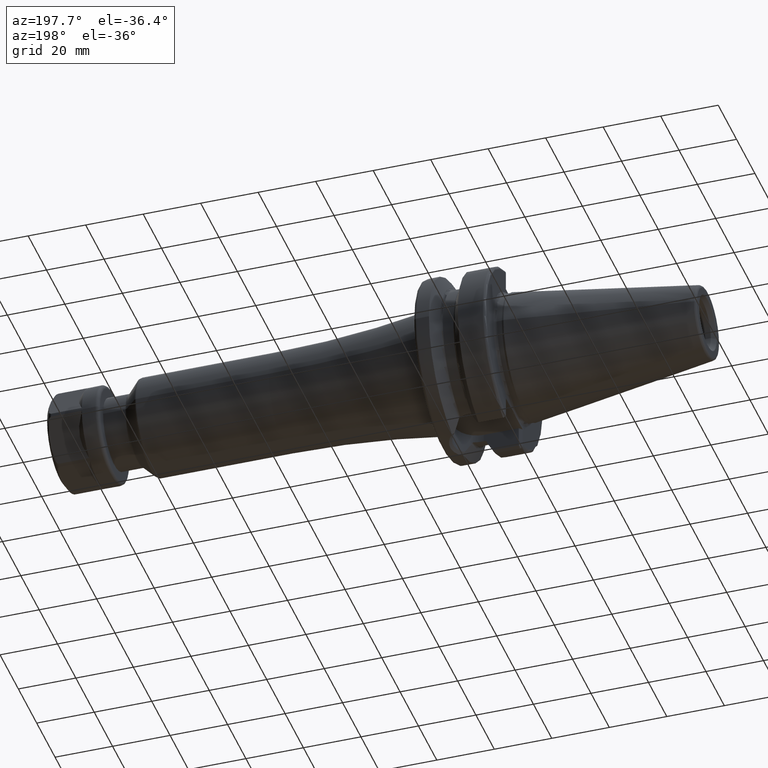
[diagram: clean part render]
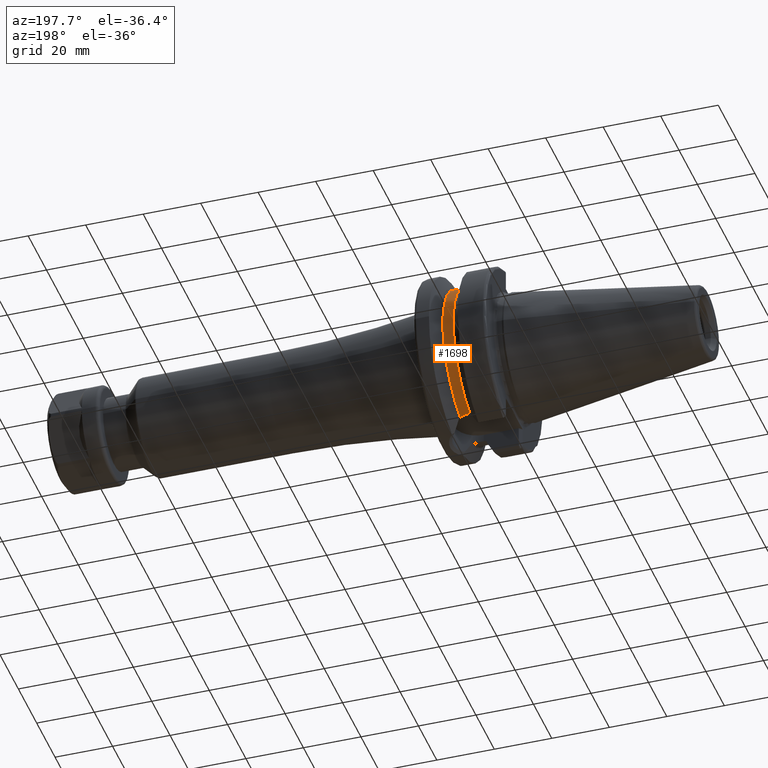
[diagram: same view with one face highlighted and labeled with its STEP entity id]
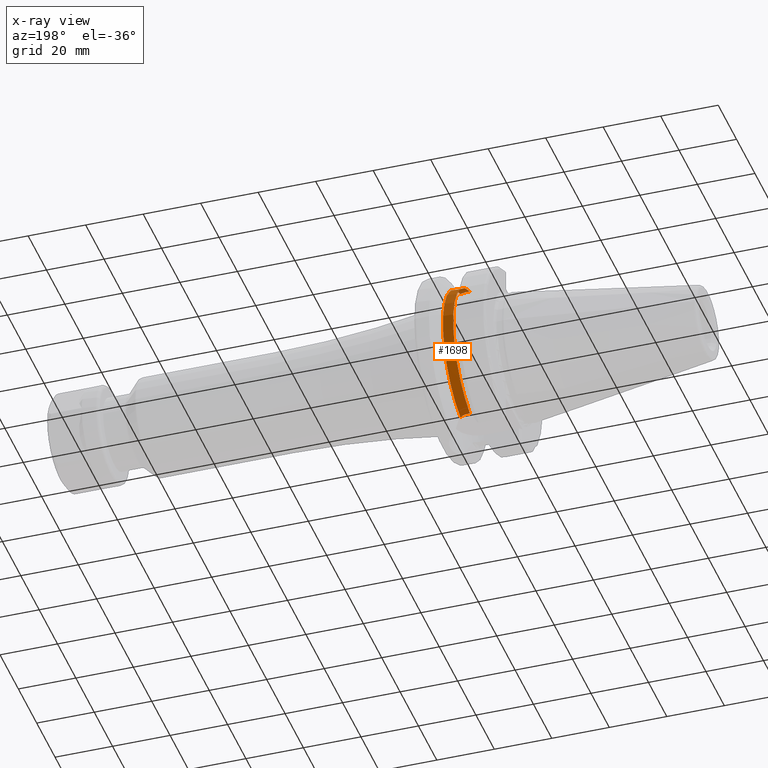
[diagram: x-ray of the same camera — body ghosted, the highlighted face saturated]
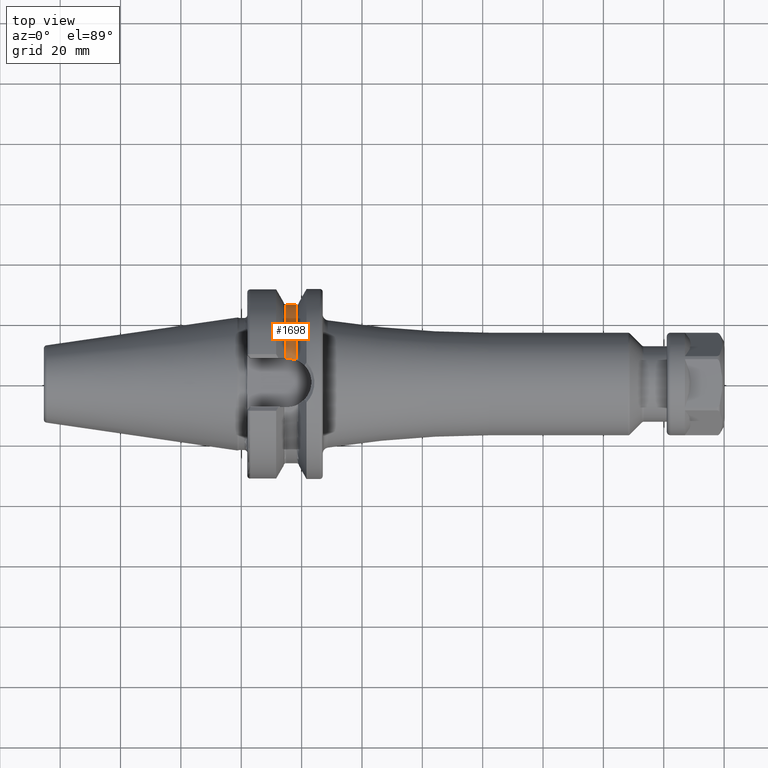
[diagram: same view with one face highlighted and labeled with its STEP entity id]
A machine part, auxiliary view. The second image highlights one B-rep face of the part: STEP entity #1698.
The next image is the same camera in x-ray: the body ghosted, the highlighted face saturated — about 1% of this face is hidden behind the body in this view.
A second angle (top view) of the same face is appended — the face is thin or edge-on in the first view.
In plain terms, the highlighted cylindrical surface (partial cylindrical patch) has radius 26.375 mm, axis along (1, 0, 0).
Its self-contained STEP definition (entity closure, byte-faithful):
#71=CARTESIAN_POINT('',(1.83875E1,0.E0,0.E0));
#72=DIRECTION('',(-1.E0,0.E0,0.E0));
#73=DIRECTION('',(0.E0,2.813872235362E-1,9.595943051262E-1));
#74=AXIS2_PLACEMENT_3D('',#71,#72,#73);
#91=CARTESIAN_POINT('',(1.48125E1,0.E0,0.E0));
#92=DIRECTION('',(-1.E0,0.E0,0.E0));
#93=DIRECTION('',(0.E0,3.069194312796E-1,9.517355003902E-1));
#94=AXIS2_PLACEMENT_3D('',#91,#92,#93);
#96=CARTESIAN_POINT('',(1.5155E1,8.095E0,-2.510202382279E1));
#97=CARTESIAN_POINT('',(1.552274115811E1,8.095E0,-2.510202382279E1));
#98=CARTESIAN_POINT('',(1.625266243215E1,8.045449937199E0,-2.511808739773E1));
#99=CARTESIAN_POINT('',(1.734035783533E1,7.820815510938E0,-2.518941465745E1));
#100=CARTESIAN_POINT('',(1.804170386658E1,7.572200800424E0,-2.526513476705E1));
#101=CARTESIAN_POINT('',(1.83875E1,7.421588020768E0,-2.530929979770E1));
#103=CARTESIAN_POINT('',(1.83875E1,7.421588020768E0,2.530929979770E1));
#104=CARTESIAN_POINT('',(1.804170386658E1,7.572200800424E0,2.526513476705E1));
#105=CARTESIAN_POINT('',(1.734035783533E1,7.820815510938E0,2.518941465745E1));
#106=CARTESIAN_POINT('',(1.625266243215E1,8.045449937199E0,2.511808739773E1));
#107=CARTESIAN_POINT('',(1.552274115811E1,8.095E0,2.510202382279E1));
#108=CARTESIAN_POINT('',(1.5155E1,8.095E0,2.510202382279E1));
#389=DIRECTION('',(1.E0,2.074577330686E-14,0.E0));
#390=VECTOR('',#389,3.425E-1);
#391=CARTESIAN_POINT('',(1.48125E1,8.095E0,-2.510202382279E1));
#392=LINE('',#391,#390);
#485=DIRECTION('',(1.E0,0.E0,0.E0));
#486=VECTOR('',#485,3.425E-1);
#487=CARTESIAN_POINT('',(1.48125E1,8.095E0,2.510202382279E1));
#488=LINE('',#487,#486);
#1266=CARTESIAN_POINT('',(1.48125E1,8.095E0,2.510202382279E1));
#1267=CARTESIAN_POINT('',(1.48125E1,8.095E0,-2.510202382279E1));
#1268=VERTEX_POINT('',#1266);
#1269=VERTEX_POINT('',#1267);
#1278=CARTESIAN_POINT('',(1.83875E1,7.421588020768E0,2.530929979770E1));
#1279=CARTESIAN_POINT('',(1.83875E1,7.421588020768E0,-2.530929979770E1));
#1280=VERTEX_POINT('',#1278);
#1281=VERTEX_POINT('',#1279);
#1400=CARTESIAN_POINT('',(1.5155E1,8.095E0,2.510202382279E1));
#1401=VERTEX_POINT('',#1400);
#1408=CARTESIAN_POINT('',(1.5155E1,8.095E0,-2.510202382279E1));
#1409=VERTEX_POINT('',#1408);
#1680=CARTESIAN_POINT('',(1.106999478413E1,0.E0,0.E0));
#1681=DIRECTION('',(1.E0,0.E0,0.E0));
#1682=DIRECTION('',(0.E0,-1.E0,0.E0));
#1683=AXIS2_PLACEMENT_3D('',#1680,#1681,#1682);
#1684=CYLINDRICAL_SURFACE('',#1683,2.6375E1);
#1686=ORIENTED_EDGE('',*,*,#1685,.T.);
#1688=ORIENTED_EDGE('',*,*,#1687,.T.);
#1690=ORIENTED_EDGE('',*,*,#1689,.T.);
#1691=ORIENTED_EDGE('',*,*,#1655,.F.);
#1693=ORIENTED_EDGE('',*,*,#1692,.T.);
#1695=ORIENTED_EDGE('',*,*,#1694,.F.);
#1696=EDGE_LOOP('',(#1686,#1688,#1690,#1691,#1693,#1695));
#1697=FACE_OUTER_BOUND('',#1696,.F.);
#1698=ADVANCED_FACE('',(#1697),#1684,.T.);
#75=CIRCLE('',#74,2.6375E1);
#95=CIRCLE('',#94,2.6375E1);
#102=B_SPLINE_CURVE_WITH_KNOTS('',3,(#96,#97,#98,#99,#100,#101),.UNSPECIFIED.,
.F.,.F.,(4,1,1,4),(0.E0,3.333333333333E-1,6.666666666667E-1,1.E0),
.UNSPECIFIED.);
#109=B_SPLINE_CURVE_WITH_KNOTS('',3,(#103,#104,#105,#106,#107,#108),
.UNSPECIFIED.,.F.,.F.,(4,1,1,4),(0.E0,3.333333333333E-1,6.666666666667E-1,1.E0),
.UNSPECIFIED.);
#1655=EDGE_CURVE('',#1280,#1281,#75,.T.);
#1685=EDGE_CURVE('',#1268,#1269,#95,.T.);
#1687=EDGE_CURVE('',#1269,#1409,#392,.T.);
#1689=EDGE_CURVE('',#1409,#1281,#102,.T.);
#1692=EDGE_CURVE('',#1280,#1401,#109,.T.);
#1694=EDGE_CURVE('',#1268,#1401,#488,.T.);